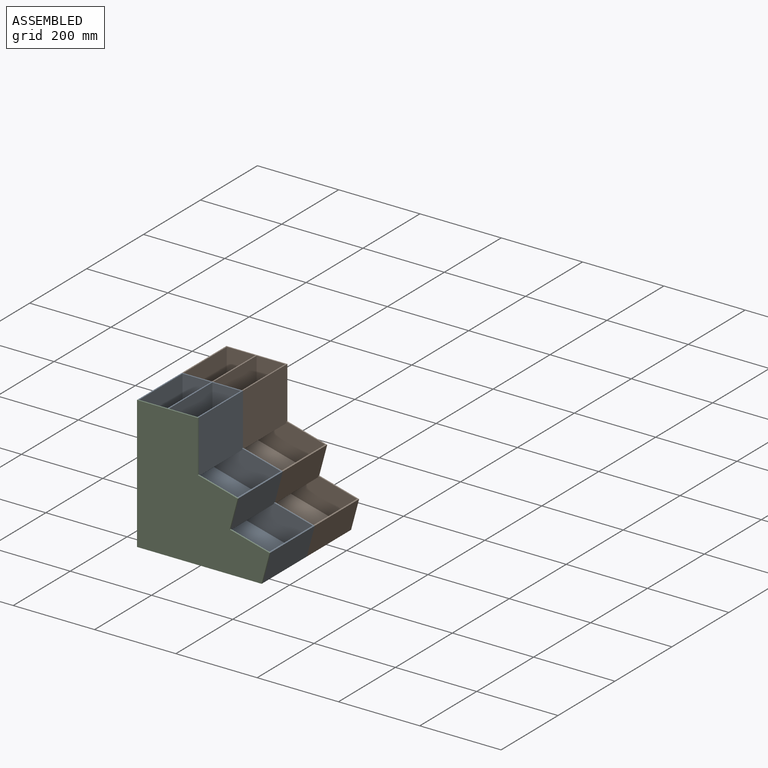
[diagram: assembled view]
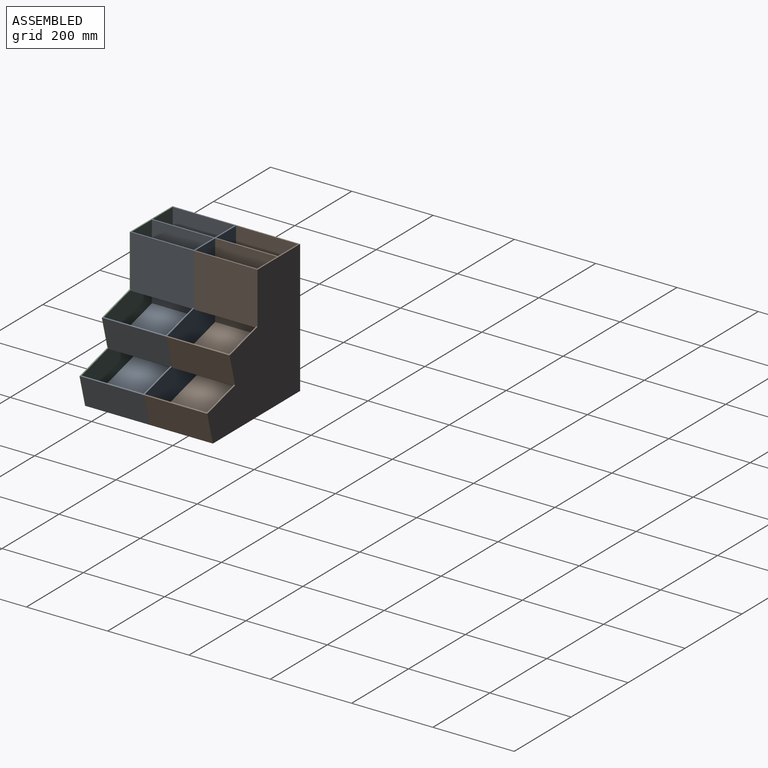
[diagram: assembled view, second angle]
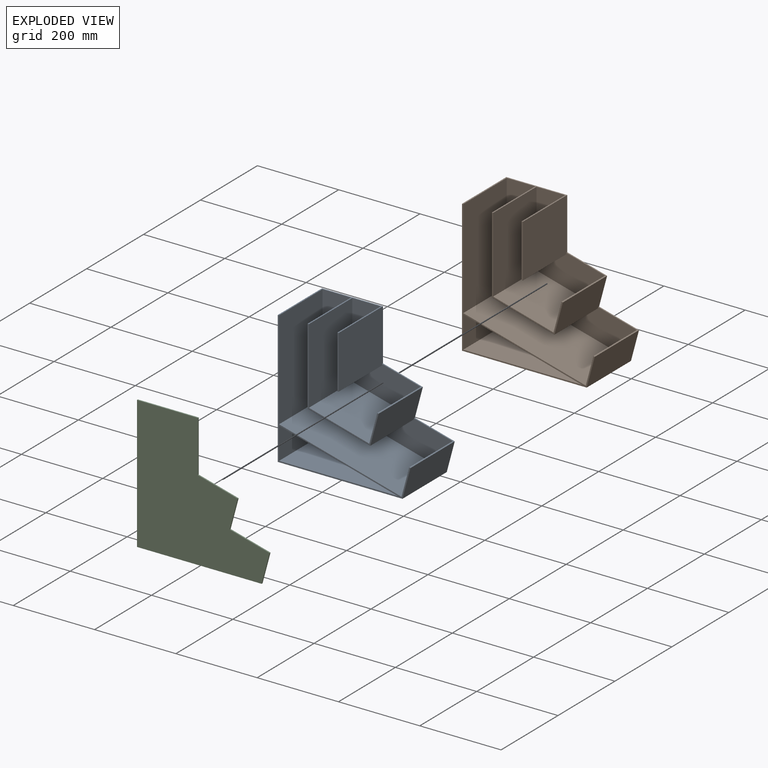
[diagram: exploded view]
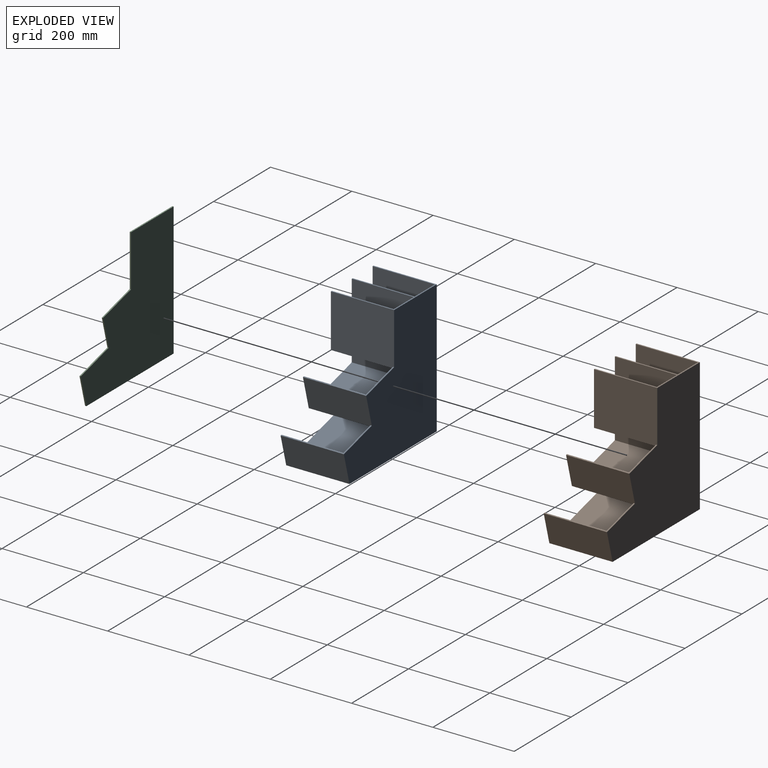
[diagram: exploded view, second angle]
ASSEMBLY  parts=3 mates=2
PART A: 32 faces, bbox 326.4x155.6x326.8 mm
  f0: plane 291.76x152.4mm, normal (-0.26,0,-0.97), area 46033mm2, adj f2,f13,f15,f16
  f1: plane 229.97x174.65mm, normal (0,-1,0), area 1345.7mm2, adj f4,f9,f10,f21,f22,f26,f27,f28
  f2: plane 326.8x326.4mm, normal (0,-1,0), area 3175mm2, adj f0,f4,f7,f8,f12,f15,f16,f17
  f3: plane 130.29x3.18mm, normal (0,-1,0), area 413.7mm2, adj f4,f11,f18,f19,f20
  f4: plane 155.58x149.84mm, normal (0,0,1), area 1927.2mm2, adj f1,f2,f3,f5,f6,f11,f12,f14
  f5: plane 226.03x168.4mm, normal (0,-1,0), area 20652.4mm2, adj f4,f10,f11,f18,f19,f20,f21,f26
  f6: plane 322.91x320.27mm, normal (0,-1,0), area 35387.4mm2, adj f4,f8,f9,f22,f23,f24,f25,f28
  f7: plane 155.58x73.6mm, normal (0.97,0,-0.26), area 11854.8mm2, adj f2,f8,f14,f17
  f8: plane 155.58x98.14mm, normal (0.26,0,0.97), area 806.4mm2, adj f2,f6,f7,f9,f14,f23
  f9: plane 155.58x76.67mm, normal (0.97,0,-0.26), area 12338.7mm2, adj f1,f6,f8,f10,f14,f22
  f10: plane 155.58x98.14mm, normal (0.26,0,0.97), area 807.6mm2, adj f1,f5,f9,f11,f14,f26
  f11: plane 155.58x130.29mm, normal (1,0,0), area 20259mm2, adj f3,f4,f5,f10,f14,f20
  f12: plane 326.8x155.58mm, normal (-1,0,0), area 50841.4mm2, adj f2,f4,f14,f17
  f13: plane 291.76x78.17mm, normal (0,-1,0), area 11403.9mm2, adj f0,f15,f16
  f14: plane 326.8x326.4mm, normal (0,1,0), area 72378mm2, adj f4,f7,f8,f9,f10,f11,f12,f17
  f15: plane 291.76x152.4mm, normal (0,0,1), area 44464.6mm2, adj f0,f2,f13,f16
  f16: plane 152.4x78.17mm, normal (1,0,0), area 11913.5mm2, adj f0,f2,f13,f15
  f17: plane 306.68x155.58mm, normal (0,0,-1), area 47711.7mm2, adj f2,f7,f12,f14
  f18: plane 152.4x130.07mm, normal (-1,0,0), area 19822.2mm2, adj f3,f4,f5,f19
  f19: plane 152.4x0.22mm, normal (-1,0,0.04), area 33.6mm2, adj f3,f5,f18,f20
  f20: plane 152.4x3.18mm, normal (0,0,-1), area 485.1mm2, adj f3,f5,f11,f19
  f21: plane 152.4x70.49mm, normal (-0.97,0,0.26), area 11129mm2, adj f1,f5,f26,f30
  f22: plane 152.4x3.25mm, normal (-0.26,0,-0.97), area 512.1mm2, adj f1,f6,f9,f29
  f23: plane 152.4x70.54mm, normal (-0.97,0,0.26), area 11129.2mm2, adj f2,f6,f8,f24
  f24: plane 301.37x152.4mm, normal (0.26,0,0.97), area 47543.8mm2, adj f2,f6,f23,f25
  f25: plane 239.1x152.4mm, normal (1,0,0), area 36438.6mm2, adj f2,f6,f24,f31
  f26: plane 152.4x3.07mm, normal (-0.97,0,0.26), area 483.9mm2, adj f1,f5,f10,f21
  f27: plane 185.87x152.4mm, normal (1,0,0), area 28326.2mm2, adj f1,f4,f5,f30
  f28: plane 188.3x152.4mm, normal (-1,0,0), area 28696.6mm2, adj f1,f4,f6,f29
  f29: plane 152.4x150.86mm, normal (-0.26,0,-0.97), area 23817mm2, adj f1,f6,f22,f28
  f30: plane 152.4x148.51mm, normal (0.26,0,0.97), area 23446.6mm2, adj f1,f5,f21,f27
  f31: plane 152.4x3.18mm, normal (1,0,0), area 483.9mm2, adj f2,f4,f6,f25
PART B: same geometry as A
PART C: 10 faces, bbox 3.2x326.4x326.8 mm
  f0: plane 306.68x3.18mm, normal (0,0,-1), area 973.7mm2, adj f1,f7,f8,f9
  f1: plane 73.6x19.72mm, normal (0,0.97,-0.26), area 241.9mm2, adj f0,f2,f8,f9
  f2: plane 98.14x26.29mm, normal (0,0.26,0.97), area 322.6mm2, adj f1,f3,f8,f9
  f3: plane 73.6x19.72mm, normal (0,0.97,-0.26), area 241.9mm2, adj f2,f4,f8,f9
  f4: plane 98.14x26.29mm, normal (0,0.26,0.97), area 322.6mm2, adj f3,f5,f8,f9
  f5: plane 127x3.18mm, normal (0,1,0), area 403.2mm2, adj f4,f6,f8,f9
  f6: plane 149.84x3.18mm, normal (0,0,1), area 475.8mm2, adj f5,f7,f8,f9
  f7: plane 326.8x3.18mm, normal (0,-1,0), area 1037.6mm2, adj f0,f6,f8,f9
  f8: plane 326.8x326.4mm, normal (1,0,0), area 72378mm2, adj f0,f1,f2,f3,f4,f5,f6,f7
  f9: plane 326.8x326.4mm, normal (-1,0,0), area 72378mm2, adj f0,f1,f2,f3,f4,f5,f6,f7
PLACE A t=(-38.99,-84.22,-15.03)mm
PLACE B t=(-38.99,71.35,-15.03)mm
PLACE C rot(axis=(0,0,-1),90deg) t=(-55.78,-239.8,-122.59)mm
MATE fastened A.f14 <-> B.f2  axis (0,1,0) through (-345.67,-84.22,311.76)mm
MATE fastened C.f9 <-> A.f2  axis (0,1,0) through (-345.67,-239.8,311.76)mm
